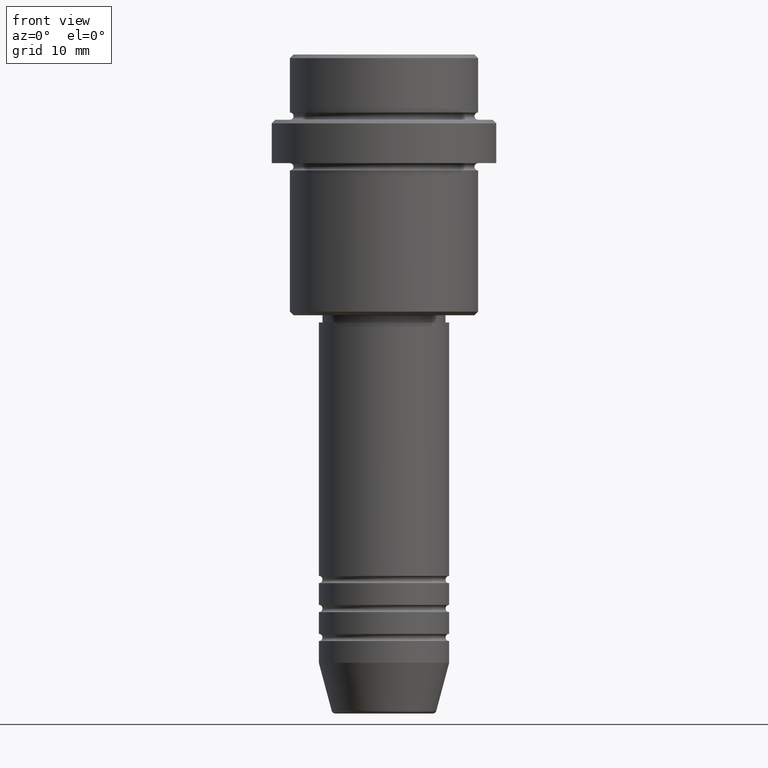
[diagram: clean part render]
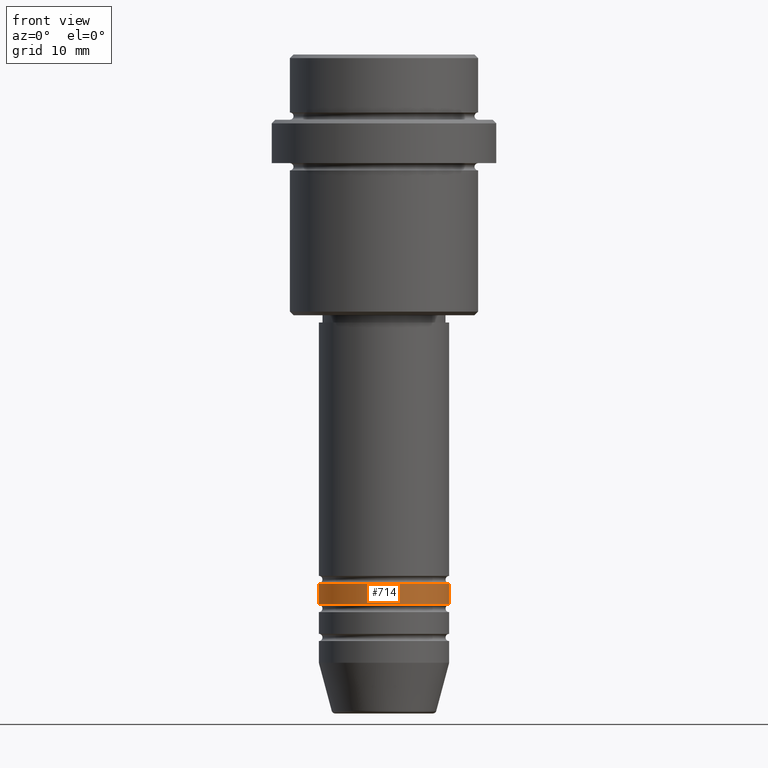
[diagram: same view with one face highlighted and labeled with its STEP entity id]
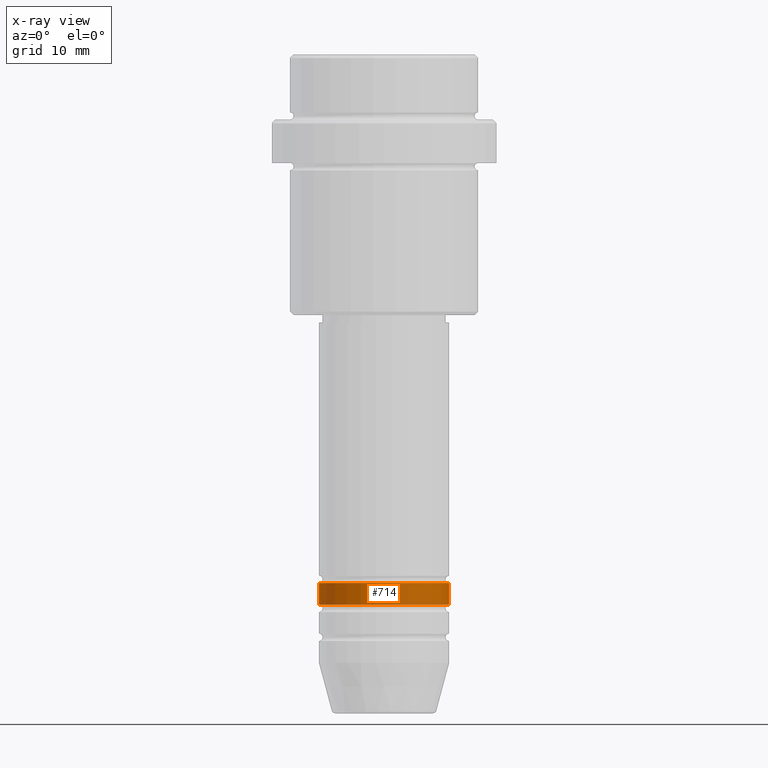
[diagram: x-ray of the same camera — body ghosted, the highlighted face saturated]
A machine part, front view. The second image highlights one B-rep face of the part: STEP entity #714.
The next image is the same camera in x-ray: the body ghosted, the highlighted face saturated — about 0% of this face is hidden behind the body in this view.
In plain terms, the highlighted cylindrical surface (partial cylindrical patch) has radius 9 mm, axis along (-0, -0, 1).
Its self-contained STEP definition (entity closure, byte-faithful):
#48 = DIRECTION ( 'NONE',  ( -0.000000000000000000, -0.000000000000000000, 1.000000000000000000 ) ) ;
#53 = CARTESIAN_POINT ( 'NONE',  ( 0.000000000000000000, 0.000000000000000000, 0.000000000000000000 ) ) ;
#64 = CYLINDRICAL_SURFACE ( 'NONE', #345, 9.000000000000000000 ) ;
#119 = AXIS2_PLACEMENT_3D ( 'NONE', #901, #48, #575 ) ;
#137 = VERTEX_POINT ( 'NONE', #464 ) ;
#177 = CARTESIAN_POINT ( 'NONE',  ( 0.000000000000000000, 0.000000000000000000, -72.99999999999987210 ) ) ;
#217 = ORIENTED_EDGE ( 'NONE', *, *, #650, .T. ) ;
#258 = ORIENTED_EDGE ( 'NONE', *, *, #1047, .T. ) ;
#291 = FACE_OUTER_BOUND ( 'NONE', #510, .T. ) ;
#324 = CIRCLE ( 'NONE', #1101, 9.000000000000000000 ) ;
#345 = AXIS2_PLACEMENT_3D ( 'NONE', #53, #1043, #703 ) ;
#389 = CARTESIAN_POINT ( 'NONE',  ( 9.000000000000000000, 0.000000000000000000, -72.99999999999987210 ) ) ;
#441 = CARTESIAN_POINT ( 'NONE',  ( -9.000000000000000000, 1.102182119232617714E-15, 0.000000000000000000 ) ) ;
#443 = LINE ( 'NONE', #1356, #521 ) ;
#464 = CARTESIAN_POINT ( 'NONE',  ( -9.000000000000000000, 1.102182119232617714E-15, -72.99999999999987210 ) ) ;
#496 = DIRECTION ( 'NONE',  ( -0.000000000000000000, -0.000000000000000000, 1.000000000000000000 ) ) ;
#510 = EDGE_LOOP ( 'NONE', ( #1173, #258, #217, #930 ) ) ;
#521 = VECTOR ( 'NONE', #807, 1000.000000000000000 ) ;
#575 = DIRECTION ( 'NONE',  ( 1.000000000000000000, 0.000000000000000000, 0.000000000000000000 ) ) ;
#599 = CIRCLE ( 'NONE', #119, 9.000000000000000000 ) ;
#622 = DIRECTION ( 'NONE',  ( 1.000000000000000000, 0.000000000000000000, 0.000000000000000000 ) ) ;
#650 = EDGE_CURVE ( 'NONE', #1223, #804, #443, .T. ) ;
#703 = DIRECTION ( 'NONE',  ( 1.000000000000000000, 0.000000000000000000, 0.000000000000000000 ) ) ;
#714 = ADVANCED_FACE ( 'NONE', ( #291 ), #64, .T. ) ;
#777 = LINE ( 'NONE', #441, #986 ) ;
#804 = VERTEX_POINT ( 'NONE', #389 ) ;
#807 = DIRECTION ( 'NONE',  ( -0.000000000000000000, -0.000000000000000000, 1.000000000000000000 ) ) ;
#861 = CARTESIAN_POINT ( 'NONE',  ( -9.000000000000000000, 1.102182119232617714E-15, -75.99999999999987210 ) ) ;
#885 = DIRECTION ( 'NONE',  ( -0.000000000000000000, -0.000000000000000000, 1.000000000000000000 ) ) ;
#901 = CARTESIAN_POINT ( 'NONE',  ( 0.000000000000000000, 0.000000000000000000, -75.99999999999987210 ) ) ;
#930 = ORIENTED_EDGE ( 'NONE', *, *, #1245, .F. ) ;
#952 = VERTEX_POINT ( 'NONE', #861 ) ;
#986 = VECTOR ( 'NONE', #885, 1000.000000000000000 ) ;
#1043 = DIRECTION ( 'NONE',  ( -0.000000000000000000, -0.000000000000000000, 1.000000000000000000 ) ) ;
#1047 = EDGE_CURVE ( 'NONE', #952, #1223, #599, .T. ) ;
#1101 = AXIS2_PLACEMENT_3D ( 'NONE', #177, #496, #622 ) ;
#1173 = ORIENTED_EDGE ( 'NONE', *, *, #1363, .F. ) ;
#1180 = CARTESIAN_POINT ( 'NONE',  ( 9.000000000000000000, 0.000000000000000000, -75.99999999999987210 ) ) ;
#1223 = VERTEX_POINT ( 'NONE', #1180 ) ;
#1245 = EDGE_CURVE ( 'NONE', #137, #804, #324, .T. ) ;
#1356 = CARTESIAN_POINT ( 'NONE',  ( 9.000000000000000000, 0.000000000000000000, 0.000000000000000000 ) ) ;
#1363 = EDGE_CURVE ( 'NONE', #952, #137, #777, .T. ) ;